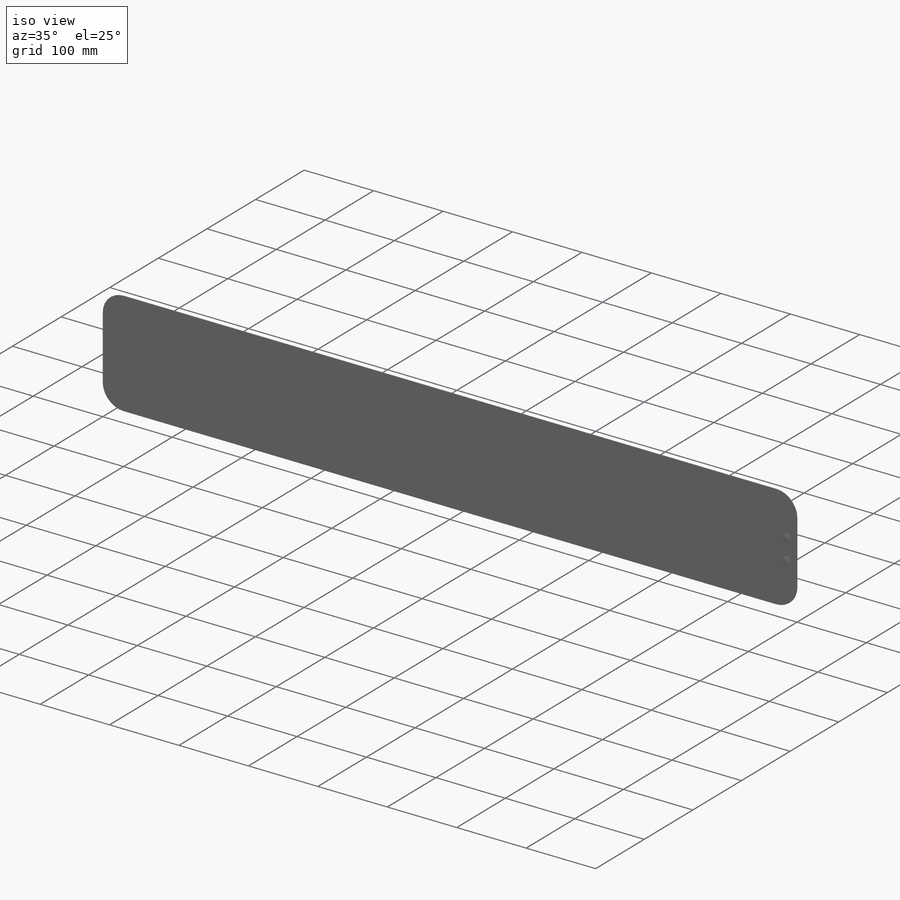
[diagram: iso view]
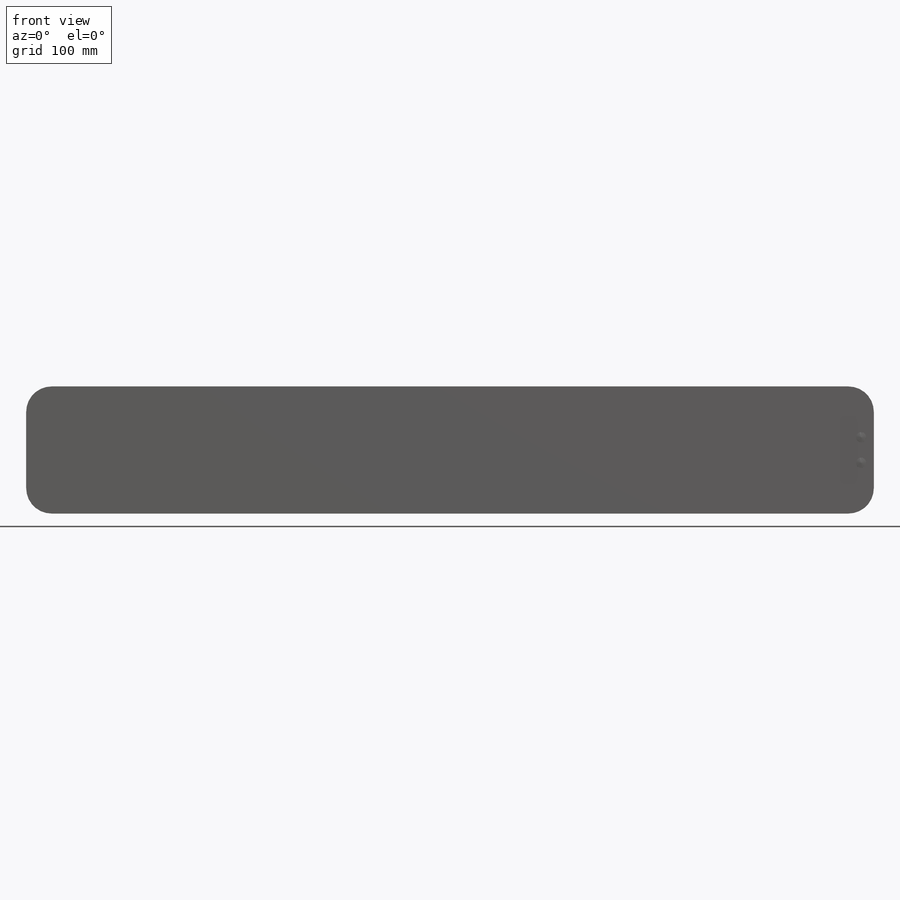
[diagram: front view]
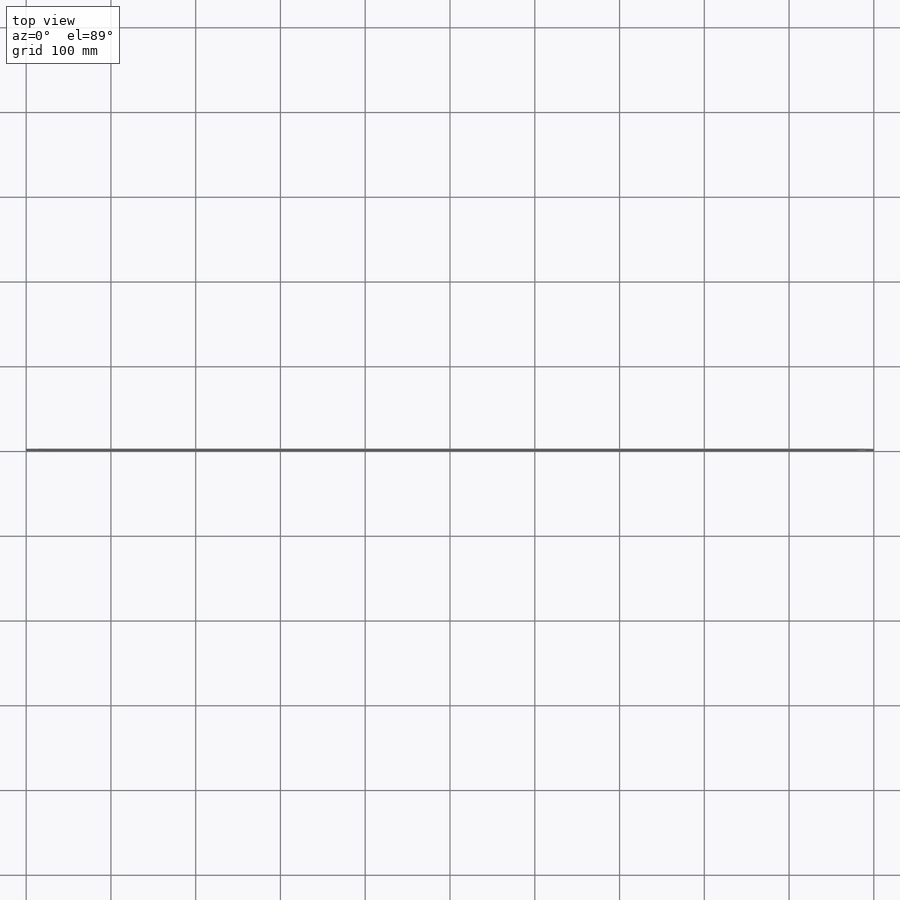
[diagram: top view]
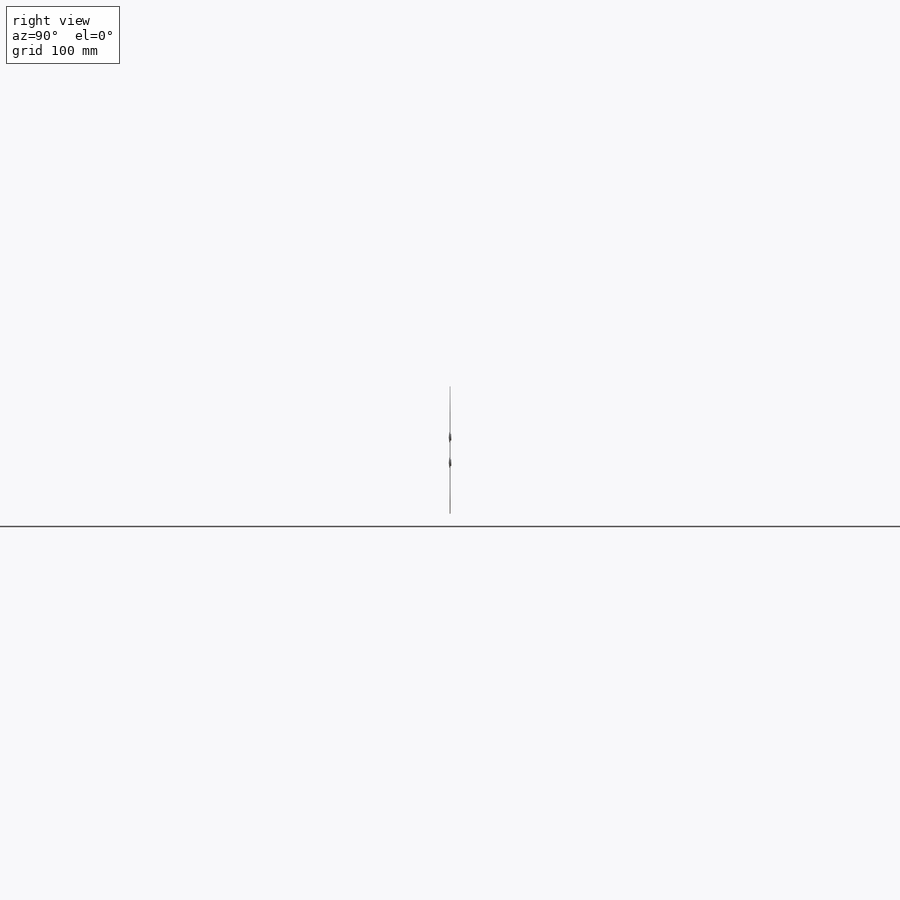
[diagram: right view]
SOLIDWORKS PART (.sldprt)
format: sldprt  version: not decoded by parser v0  size: 193,536 bytes
history: native  units: mm
features: sketch x4, plane x3, sheet_metal_op x2, extrude x2, material x1, dome x1 + 1 further entry (+13 scaffold rows collapsed)
feature tree (27):
  scaffold x13  (default folders/planes/origin — collapsed)
  material  "材质 <未指定>"
  plane  "前视基准面"
  plane  "上视基准面"
  plane  "右视基准面"
  sketch  "草图1"  dims[c1.D3=30.0mm c1.D4=8.0mm c1.D1=150.0mm c1.D2=1000.0mm c2.D1=15.0mm c2.D2=24.0mm c3.D1=15.0mm c3.D2=15.0mm c4.D1=15.0mm]
  sheet_metal_op  "钣金3"  厚度=0.7366mm
  sheet_metal_op  "基体-法兰3"
  sketch  "草图7"  dims[D1=0.0mm D2=2.0mm]
  extrude  "凸台-拉伸3"  Depth=0.5mm
  dome  "圆顶2"
  sketch  "草图8"  dims[D1=0.0mm]
  extrude  "凸台-拉伸4"  Depth=1mm
  "平板型式3"
  sketch  "折弯-线3"
decode coverage: 6 of 9 modeling features carry decoded parameters; 1 rows unclassified (native names shown)
note: suppression state not decoded; provenance and decode notes live in map.json
